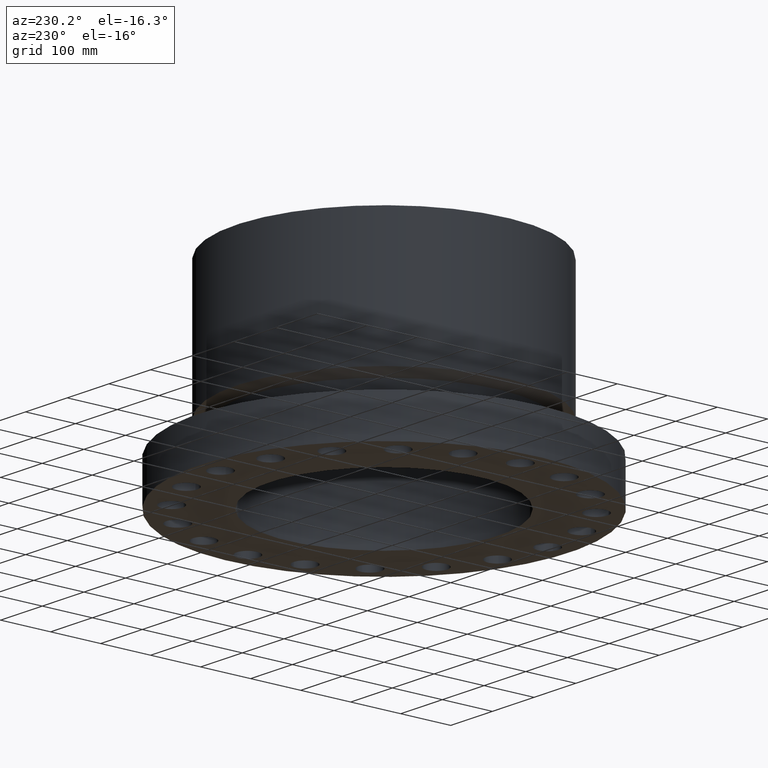
[diagram: clean part render]
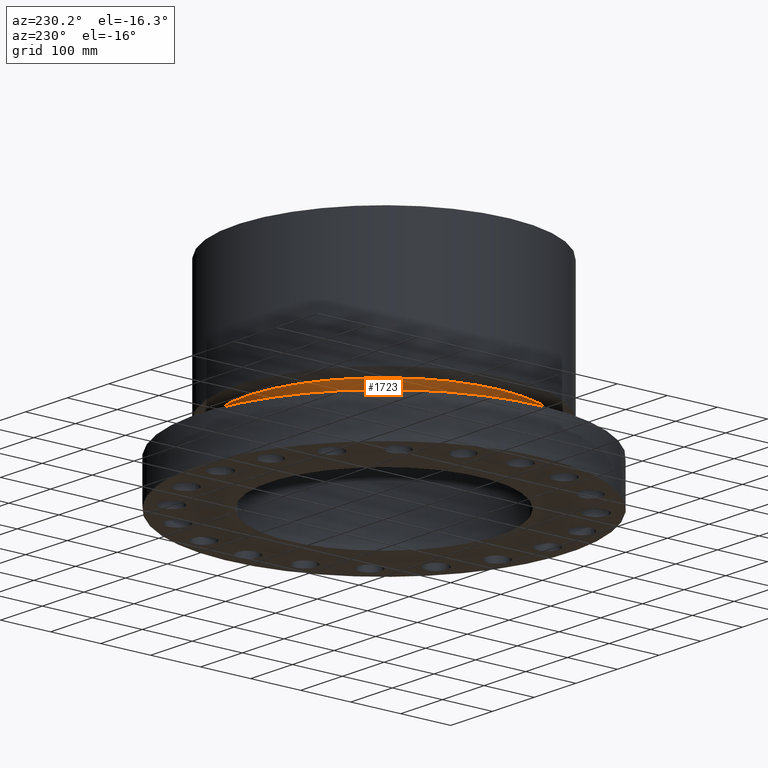
[diagram: same view with one face highlighted and labeled with its STEP entity id]
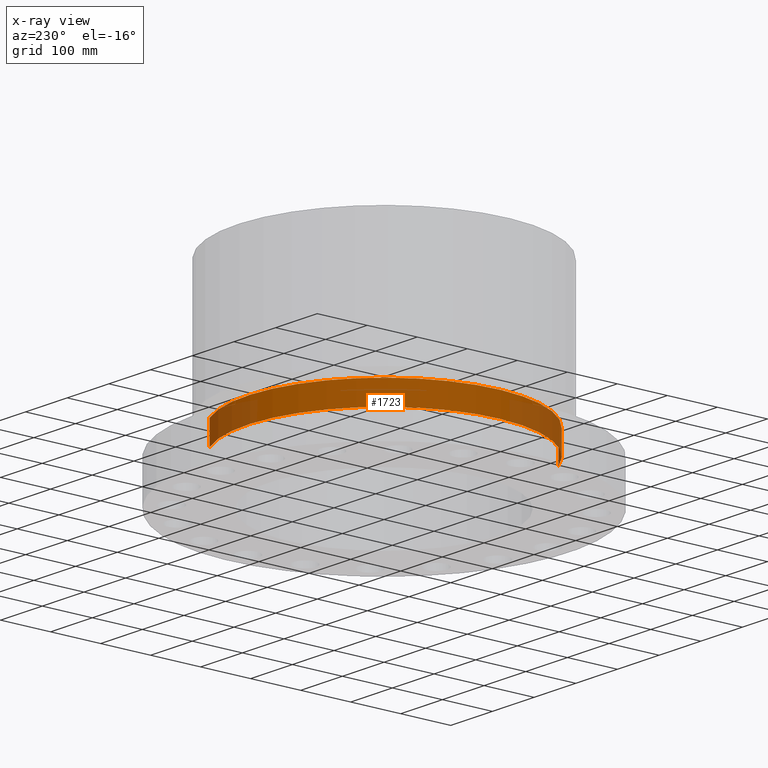
[diagram: x-ray of the same camera — body ghosted, the highlighted face saturated]
A machine part, auxiliary view. The second image highlights one B-rep face of the part: STEP entity #1723.
The next image is the same camera in x-ray: the body ghosted, the highlighted face saturated — about 26% of this face is hidden behind the body in this view.
In plain terms, the highlighted cylindrical surface (partial cylindrical patch) has radius 273.05 mm, axis along (0, 0, -1).
Its self-contained STEP definition (entity closure, byte-faithful):
#1492=AXIS2_PLACEMENT_3D('Circle Axis2P3D',#1490,#1491,$) ;
#1684=AXIS2_PLACEMENT_3D('Cylinder Axis2P3D',#1681,#1682,#1683) ;
#1714=AXIS2_PLACEMENT_3D('Circle Axis2P3D',#1712,#1713,$) ;
#1468=CARTESIAN_POINT('Vertex',(5.15382454002,9.43401254036,3.29098076213)) ;
#1475=CARTESIAN_POINT('Vertex',(-5.15382454002,-9.43401254036,3.29098076213)) ;
#1490=CARTESIAN_POINT('Axis2P3D Location',(0.,0.,3.29098076213)) ;
#1681=CARTESIAN_POINT('Axis2P3D Location',(0.,0.,7.75000000003)) ;
#1686=CARTESIAN_POINT('Line Origine',(5.15382454002,9.43401254036,4.21049038107)) ;
#1690=CARTESIAN_POINT('Vertex',(5.15382454002,9.43401254036,5.13000000002)) ;
#1697=CARTESIAN_POINT('Vertex',(-5.15382454002,-9.43401254036,5.13000000002)) ;
#1700=CARTESIAN_POINT('Line Origine',(-5.15382454002,-9.43401254036,4.21049038107)) ;
#1712=CARTESIAN_POINT('Axis2P3D Location',(0.,0.,5.13000000002)) ;
#1491=DIRECTION('Axis2P3D Direction',(-0.,0.,0.0393700787402)) ;
#1682=DIRECTION('Axis2P3D Direction',(0.,0.,-0.0393700787402)) ;
#1683=DIRECTION('Axis2P3D XDirection',(-0.0188750212049,-0.0345504945626,0.)) ;
#1687=DIRECTION('Vector Direction',(0.,0.,-0.0393700787402)) ;
#1701=DIRECTION('Vector Direction',(0.,0.,-0.0393700787402)) ;
#1713=DIRECTION('Axis2P3D Direction',(0.,0.,-0.0393700787402)) ;
#1688=VECTOR('Line Direction',#1687,0.0393700787402) ;
#1702=VECTOR('Line Direction',#1701,0.0393700787402) ;
#1718=ORIENTED_EDGE('',*,*,#1494,.F.) ;
#1719=ORIENTED_EDGE('',*,*,#1704,.T.) ;
#1720=ORIENTED_EDGE('',*,*,#1716,.T.) ;
#1721=ORIENTED_EDGE('',*,*,#1692,.F.) ;
#1723=ADVANCED_FACE('PartBody',(#1722),#1685,.T.) ;
#1493=CIRCLE('generated circle',#1492,10.75) ;
#1715=CIRCLE('generated circle',#1714,10.75) ;
#1685=CYLINDRICAL_SURFACE('generated cylinder',#1684,10.75) ;
#1494=EDGE_CURVE('',#1476,#1469,#1493,.F.) ;
#1692=EDGE_CURVE('',#1469,#1691,#1689,.F.) ;
#1704=EDGE_CURVE('',#1476,#1698,#1703,.F.) ;
#1716=EDGE_CURVE('',#1698,#1691,#1715,.T.) ;
#1717=EDGE_LOOP('',(#1718,#1719,#1720,#1721)) ;
#1722=FACE_OUTER_BOUND('',#1717,.T.) ;
#1689=LINE('Line',#1686,#1688) ;
#1703=LINE('Line',#1700,#1702) ;
#1469=VERTEX_POINT('',#1468) ;
#1476=VERTEX_POINT('',#1475) ;
#1691=VERTEX_POINT('',#1690) ;
#1698=VERTEX_POINT('',#1697) ;